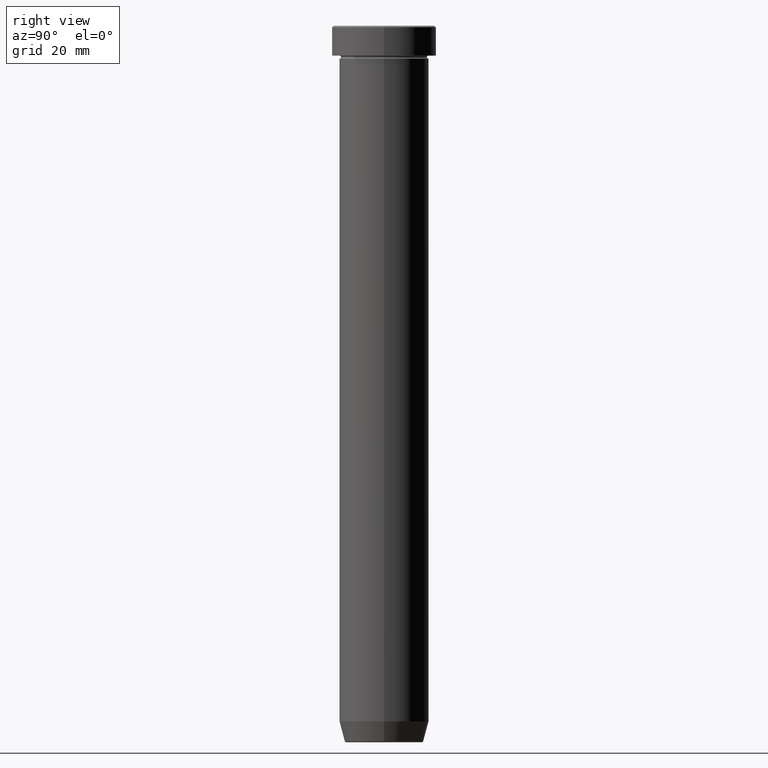
[diagram: clean part render]
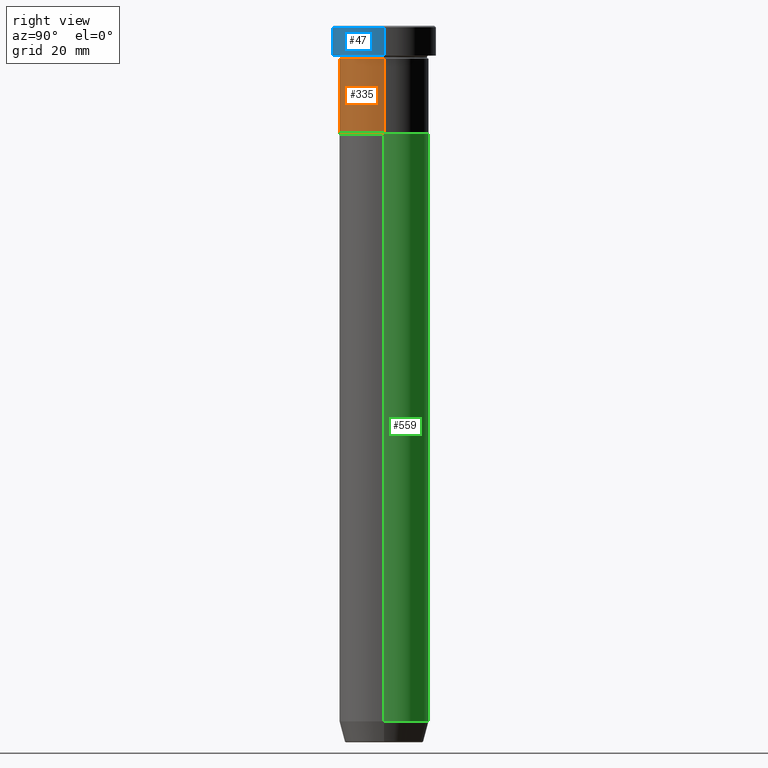
[diagram: same view with three faces highlighted in distinct colors, each labeled with its STEP entity id]
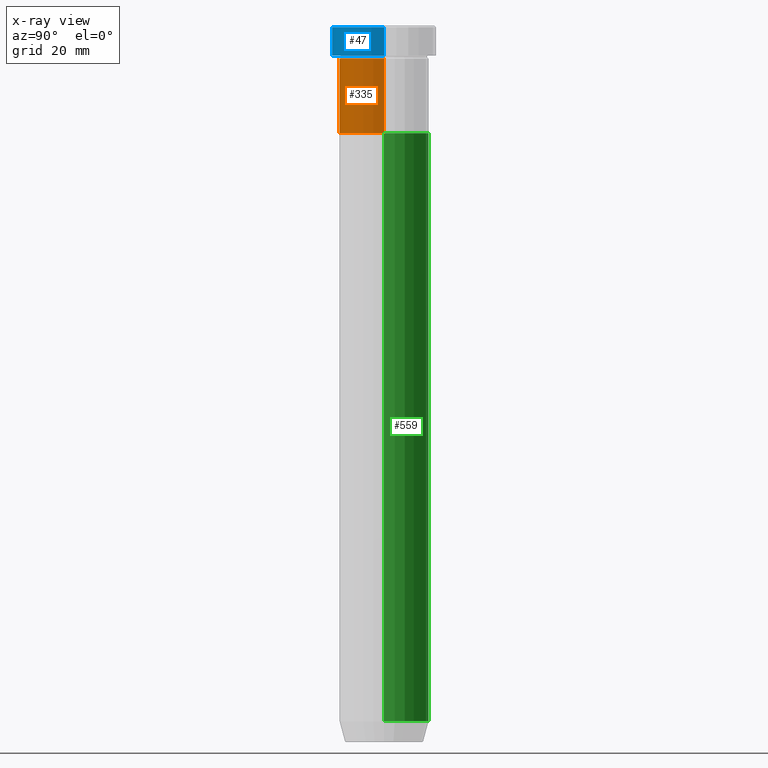
[diagram: x-ray of the same camera — body ghosted, the three highlighted faces saturated]
A machine part, right view with three faces highlighted in distinct colors.
The next image is the same camera in x-ray (body ghosted, the three faces saturated) — at least one of them is partly hidden behind the body in this view.
Their STEP definitions:

[orange] entity #335 — the highlighted cylindrical surface (partial cylindrical patch) has radius 15 mm, axis along (-0, -0, 1).
#2 = FACE_OUTER_BOUND ( 'NONE', #415, .T. ) ;
#10 = DIRECTION ( 'NONE',  ( -0.000000000000000000, -0.000000000000000000, 1.000000000000000000 ) ) ;
#12 = CARTESIAN_POINT ( 'NONE',  ( 15.00000000000000000, 0.000000000000000000, -36.00000000000000000 ) ) ;
#19 = VERTEX_POINT ( 'NONE', #535 ) ;
#20 = AXIS2_PLACEMENT_3D ( 'NONE', #50, #414, #107 ) ;
#50 = CARTESIAN_POINT ( 'NONE',  ( 0.000000000000000000, 0.000000000000000000, -36.00000000000000000 ) ) ;
#61 = LINE ( 'NONE', #380, #83 ) ;
#70 = ORIENTED_EDGE ( 'NONE', *, *, #93, .F. ) ;
#71 = EDGE_CURVE ( 'NONE', #584, #75, #413, .T. ) ;
#75 = VERTEX_POINT ( 'NONE', #140 ) ;
#83 = VECTOR ( 'NONE', #482, 1000.000000000000000 ) ;
#93 = EDGE_CURVE ( 'NONE', #75, #19, #251, .T. ) ;
#107 = DIRECTION ( 'NONE',  ( 1.000000000000000000, 0.000000000000000000, 0.000000000000000000 ) ) ;
#110 = AXIS2_PLACEMENT_3D ( 'NONE', #289, #202, #567 ) ;
#140 = CARTESIAN_POINT ( 'NONE',  ( -15.00000000000000000, 1.836970198721029589E-15, -11.00000000000000000 ) ) ;
#149 = EDGE_CURVE ( 'NONE', #384, #19, #61, .T. ) ;
#202 = DIRECTION ( 'NONE',  ( -0.000000000000000000, -0.000000000000000000, 1.000000000000000000 ) ) ;
#251 = CIRCLE ( 'NONE', #592, 15.00000000000000000 ) ;
#259 = VECTOR ( 'NONE', #10, 1000.000000000000000 ) ;
#281 = DIRECTION ( 'NONE',  ( 1.000000000000000000, 0.000000000000000000, 0.000000000000000000 ) ) ;
#289 = CARTESIAN_POINT ( 'NONE',  ( 0.000000000000000000, 0.000000000000000000, 0.000000000000000000 ) ) ;
#305 = ORIENTED_EDGE ( 'NONE', *, *, #427, .T. ) ;
#335 = ADVANCED_FACE ( 'NONE', ( #2 ), #388, .T. ) ;
#377 = ORIENTED_EDGE ( 'NONE', *, *, #149, .T. ) ;
#380 = CARTESIAN_POINT ( 'NONE',  ( 15.00000000000000000, 0.000000000000000000, 0.000000000000000000 ) ) ;
#384 = VERTEX_POINT ( 'NONE', #12 ) ;
#388 = CYLINDRICAL_SURFACE ( 'NONE', #110, 15.00000000000000000 ) ;
#399 = CARTESIAN_POINT ( 'NONE',  ( -15.00000000000000000, 1.836970198721029589E-15, -36.00000000000000000 ) ) ;
#413 = LINE ( 'NONE', #595, #259 ) ;
#414 = DIRECTION ( 'NONE',  ( -0.000000000000000000, -0.000000000000000000, 1.000000000000000000 ) ) ;
#415 = EDGE_LOOP ( 'NONE', ( #425, #305, #377, #70 ) ) ;
#425 = ORIENTED_EDGE ( 'NONE', *, *, #71, .F. ) ;
#427 = EDGE_CURVE ( 'NONE', #584, #384, #474, .T. ) ;
#474 = CIRCLE ( 'NONE', #20, 15.00000000000000000 ) ;
#482 = DIRECTION ( 'NONE',  ( -0.000000000000000000, -0.000000000000000000, 1.000000000000000000 ) ) ;
#515 = CARTESIAN_POINT ( 'NONE',  ( 0.000000000000000000, 0.000000000000000000, -11.00000000000000000 ) ) ;
#519 = DIRECTION ( 'NONE',  ( -0.000000000000000000, -0.000000000000000000, 1.000000000000000000 ) ) ;
#535 = CARTESIAN_POINT ( 'NONE',  ( 15.00000000000000000, 0.000000000000000000, -11.00000000000000000 ) ) ;
#567 = DIRECTION ( 'NONE',  ( 1.000000000000000000, 0.000000000000000000, 0.000000000000000000 ) ) ;
#584 = VERTEX_POINT ( 'NONE', #399 ) ;
#592 = AXIS2_PLACEMENT_3D ( 'NONE', #515, #519, #281 ) ;
#595 = CARTESIAN_POINT ( 'NONE',  ( -15.00000000000000000, 1.836970198721029589E-15, 0.000000000000000000 ) ) ;

[blue] entity #47 — the highlighted cylindrical surface (partial cylindrical patch) has radius 17.5 mm, axis along (-0, -0, 1).
#3 = DIRECTION ( 'NONE',  ( 1.000000000000000000, 0.000000000000000000, 0.000000000000000000 ) ) ;
#35 = VERTEX_POINT ( 'NONE', #447 ) ;
#47 = ADVANCED_FACE ( 'NONE', ( #499 ), #90, .T. ) ;
#64 = ORIENTED_EDGE ( 'NONE', *, *, #201, .T. ) ;
#78 = CARTESIAN_POINT ( 'NONE',  ( 0.000000000000000000, 0.000000000000000000, -0.5000000000000073275 ) ) ;
#85 = VECTOR ( 'NONE', #560, 1000.000000000000000 ) ;
#90 = CYLINDRICAL_SURFACE ( 'NONE', #307, 17.50000000000000000 ) ;
#111 = CARTESIAN_POINT ( 'NONE',  ( 17.50000000000000000, 0.000000000000000000, -9.999999999999998224 ) ) ;
#114 = CIRCLE ( 'NONE', #451, 17.50000000000000000 ) ;
#125 = ORIENTED_EDGE ( 'NONE', *, *, #385, .F. ) ;
#129 = LINE ( 'NONE', #588, #405 ) ;
#134 = DIRECTION ( 'NONE',  ( -0.000000000000000000, -0.000000000000000000, 1.000000000000000000 ) ) ;
#198 = ORIENTED_EDGE ( 'NONE', *, *, #317, .T. ) ;
#201 = EDGE_CURVE ( 'NONE', #379, #35, #114, .T. ) ;
#267 = DIRECTION ( 'NONE',  ( 0.000000000000000000, 0.000000000000000000, -1.000000000000000000 ) ) ;
#307 = AXIS2_PLACEMENT_3D ( 'NONE', #553, #134, #3 ) ;
#317 = EDGE_CURVE ( 'NONE', #416, #333, #484, .T. ) ;
#324 = CARTESIAN_POINT ( 'NONE',  ( -17.50000000000000000, 2.143131898507868248E-15, -9.999999999999998224 ) ) ;
#333 = VERTEX_POINT ( 'NONE', #111 ) ;
#347 = ORIENTED_EDGE ( 'NONE', *, *, #511, .T. ) ;
#370 = DIRECTION ( 'NONE',  ( 1.000000000000000000, 0.000000000000000000, 0.000000000000000000 ) ) ;
#379 = VERTEX_POINT ( 'NONE', #500 ) ;
#385 = EDGE_CURVE ( 'NONE', #416, #35, #477, .T. ) ;
#405 = VECTOR ( 'NONE', #466, 1000.000000000000000 ) ;
#410 = CARTESIAN_POINT ( 'NONE',  ( -17.50000000000000000, 2.143131898507868248E-15, 0.000000000000000000 ) ) ;
#416 = VERTEX_POINT ( 'NONE', #324 ) ;
#447 = CARTESIAN_POINT ( 'NONE',  ( -17.50000000000000000, 2.143131898507868248E-15, -0.5000000000000073275 ) ) ;
#451 = AXIS2_PLACEMENT_3D ( 'NONE', #78, #267, #496 ) ;
#452 = AXIS2_PLACEMENT_3D ( 'NONE', #518, #525, #370 ) ;
#466 = DIRECTION ( 'NONE',  ( -0.000000000000000000, -0.000000000000000000, 1.000000000000000000 ) ) ;
#477 = LINE ( 'NONE', #410, #85 ) ;
#484 = CIRCLE ( 'NONE', #452, 17.50000000000000000 ) ;
#496 = DIRECTION ( 'NONE',  ( 1.000000000000000000, 0.000000000000000000, 0.000000000000000000 ) ) ;
#499 = FACE_OUTER_BOUND ( 'NONE', #537, .T. ) ;
#500 = CARTESIAN_POINT ( 'NONE',  ( 17.50000000000000000, 0.000000000000000000, -0.5000000000000073275 ) ) ;
#511 = EDGE_CURVE ( 'NONE', #333, #379, #129, .T. ) ;
#518 = CARTESIAN_POINT ( 'NONE',  ( 0.000000000000000000, 0.000000000000000000, -9.999999999999998224 ) ) ;
#525 = DIRECTION ( 'NONE',  ( -0.000000000000000000, -0.000000000000000000, 1.000000000000000000 ) ) ;
#537 = EDGE_LOOP ( 'NONE', ( #125, #198, #347, #64 ) ) ;
#553 = CARTESIAN_POINT ( 'NONE',  ( 0.000000000000000000, 0.000000000000000000, 0.000000000000000000 ) ) ;
#560 = DIRECTION ( 'NONE',  ( -0.000000000000000000, -0.000000000000000000, 1.000000000000000000 ) ) ;
#588 = CARTESIAN_POINT ( 'NONE',  ( 17.50000000000000000, 0.000000000000000000, 0.000000000000000000 ) ) ;

[green] entity #559 — the highlighted cylindrical surface (partial cylindrical patch) has radius 15 mm, axis along (-0, -0, 1).
#1 = DIRECTION ( 'NONE',  ( -0.000000000000000000, -0.000000000000000000, 1.000000000000000000 ) ) ;
#4 = CARTESIAN_POINT ( 'NONE',  ( -15.00000000000000000, 1.836970198721029589E-15, 0.000000000000000000 ) ) ;
#43 = CARTESIAN_POINT ( 'NONE',  ( 0.000000000000000000, 0.000000000000000000, -232.9999999999999716 ) ) ;
#55 = CARTESIAN_POINT ( 'NONE',  ( -15.00000000000000000, 1.836970198721029589E-15, -36.00000000000000000 ) ) ;
#80 = CARTESIAN_POINT ( 'NONE',  ( 15.00000000000000178, 0.000000000000000000, -232.9999999999999716 ) ) ;
#81 = EDGE_CURVE ( 'NONE', #583, #122, #232, .T. ) ;
#82 = CARTESIAN_POINT ( 'NONE',  ( 0.000000000000000000, 0.000000000000000000, -36.00000000000000000 ) ) ;
#96 = DIRECTION ( 'NONE',  ( 1.000000000000000000, 0.000000000000000000, 0.000000000000000000 ) ) ;
#112 = ORIENTED_EDGE ( 'NONE', *, *, #341, .T. ) ;
#122 = VERTEX_POINT ( 'NONE', #420 ) ;
#144 = AXIS2_PLACEMENT_3D ( 'NONE', #190, #554, #96 ) ;
#163 = EDGE_LOOP ( 'NONE', ( #235, #112, #243, #468 ) ) ;
#170 = VECTOR ( 'NONE', #374, 1000.000000000000000 ) ;
#190 = CARTESIAN_POINT ( 'NONE',  ( 0.000000000000000000, 0.000000000000000000, 0.000000000000000000 ) ) ;
#192 = DIRECTION ( 'NONE',  ( -0.000000000000000000, -0.000000000000000000, 1.000000000000000000 ) ) ;
#194 = CIRCLE ( 'NONE', #585, 15.00000000000000178 ) ;
#232 = LINE ( 'NONE', #424, #170 ) ;
#235 = ORIENTED_EDGE ( 'NONE', *, *, #546, .T. ) ;
#243 = ORIENTED_EDGE ( 'NONE', *, *, #291, .F. ) ;
#244 = AXIS2_PLACEMENT_3D ( 'NONE', #82, #498, #271 ) ;
#271 = DIRECTION ( 'NONE',  ( 1.000000000000000000, 0.000000000000000000, 0.000000000000000000 ) ) ;
#275 = DIRECTION ( 'NONE',  ( 1.000000000000000000, 0.000000000000000000, 0.000000000000000000 ) ) ;
#291 = EDGE_CURVE ( 'NONE', #122, #339, #297, .T. ) ;
#297 = CIRCLE ( 'NONE', #244, 15.00000000000000000 ) ;
#339 = VERTEX_POINT ( 'NONE', #55 ) ;
#341 = EDGE_CURVE ( 'NONE', #430, #339, #520, .T. ) ;
#369 = CYLINDRICAL_SURFACE ( 'NONE', #144, 15.00000000000000000 ) ;
#374 = DIRECTION ( 'NONE',  ( -0.000000000000000000, -0.000000000000000000, 1.000000000000000000 ) ) ;
#393 = VECTOR ( 'NONE', #192, 1000.000000000000000 ) ;
#408 = FACE_OUTER_BOUND ( 'NONE', #163, .T. ) ;
#420 = CARTESIAN_POINT ( 'NONE',  ( 15.00000000000000000, 0.000000000000000000, -36.00000000000000000 ) ) ;
#424 = CARTESIAN_POINT ( 'NONE',  ( 15.00000000000000000, 0.000000000000000000, 0.000000000000000000 ) ) ;
#430 = VERTEX_POINT ( 'NONE', #556 ) ;
#468 = ORIENTED_EDGE ( 'NONE', *, *, #81, .F. ) ;
#498 = DIRECTION ( 'NONE',  ( -0.000000000000000000, -0.000000000000000000, 1.000000000000000000 ) ) ;
#520 = LINE ( 'NONE', #4, #393 ) ;
#546 = EDGE_CURVE ( 'NONE', #583, #430, #194, .T. ) ;
#554 = DIRECTION ( 'NONE',  ( -0.000000000000000000, -0.000000000000000000, 1.000000000000000000 ) ) ;
#556 = CARTESIAN_POINT ( 'NONE',  ( -15.00000000000000355, 1.836970198721029983E-15, -232.9999999999999716 ) ) ;
#559 = ADVANCED_FACE ( 'NONE', ( #408 ), #369, .T. ) ;
#583 = VERTEX_POINT ( 'NONE', #80 ) ;
#585 = AXIS2_PLACEMENT_3D ( 'NONE', #43, #1, #275 ) ;